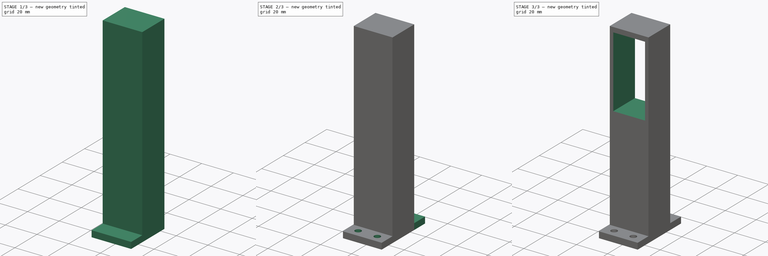
[diagram: build sequence overview — one tinted view per stage of 3, left to right]
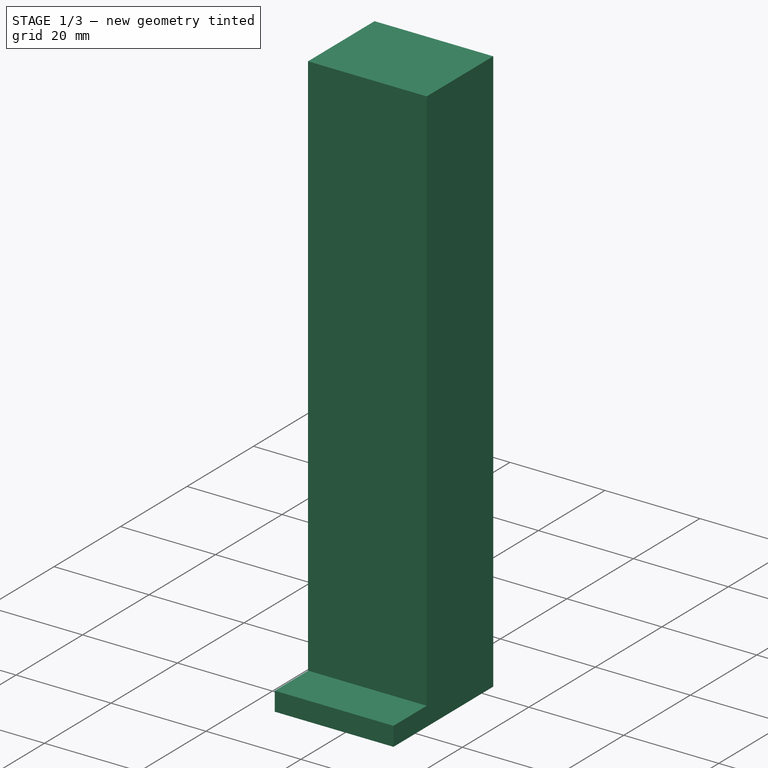
[diagram: stage 1 of 3 — iso view after this stage's code; geometry added in this stage tinted green]
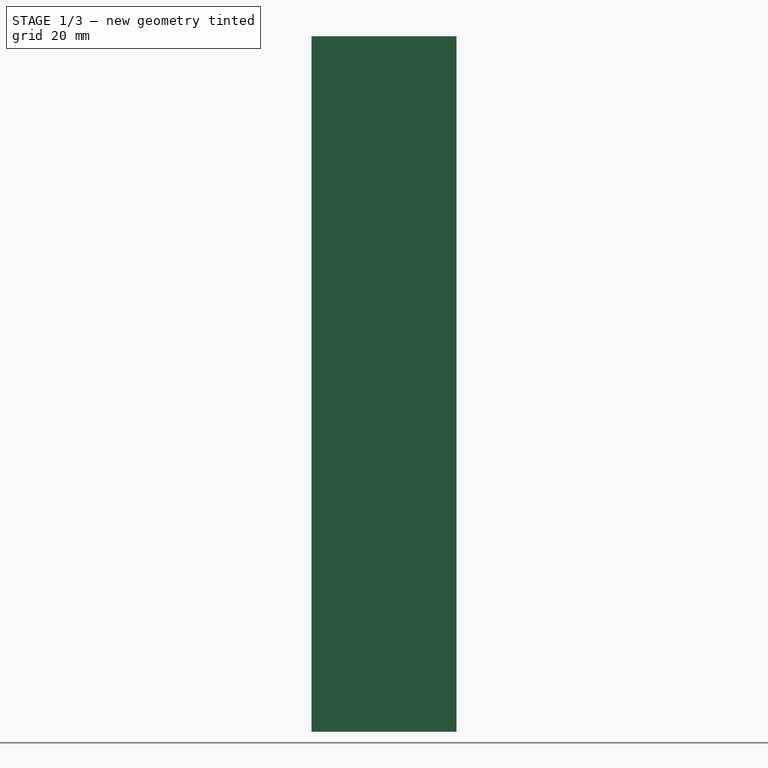
[diagram: stage 1 of 3 — front view after this stage's code; geometry added in this stage tinted green]
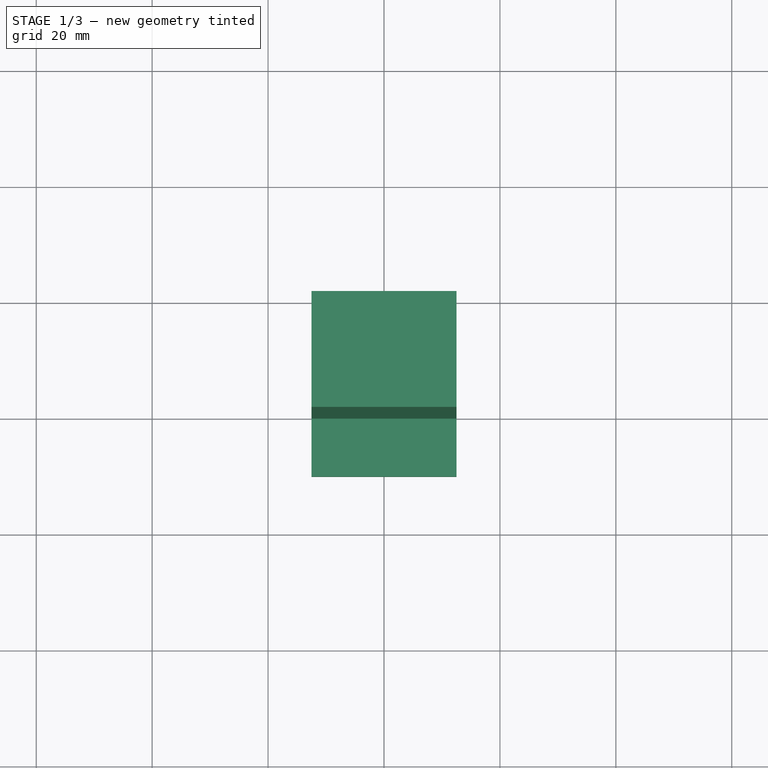
[diagram: stage 1 of 3 — top view after this stage's code; geometry added in this stage tinted green]
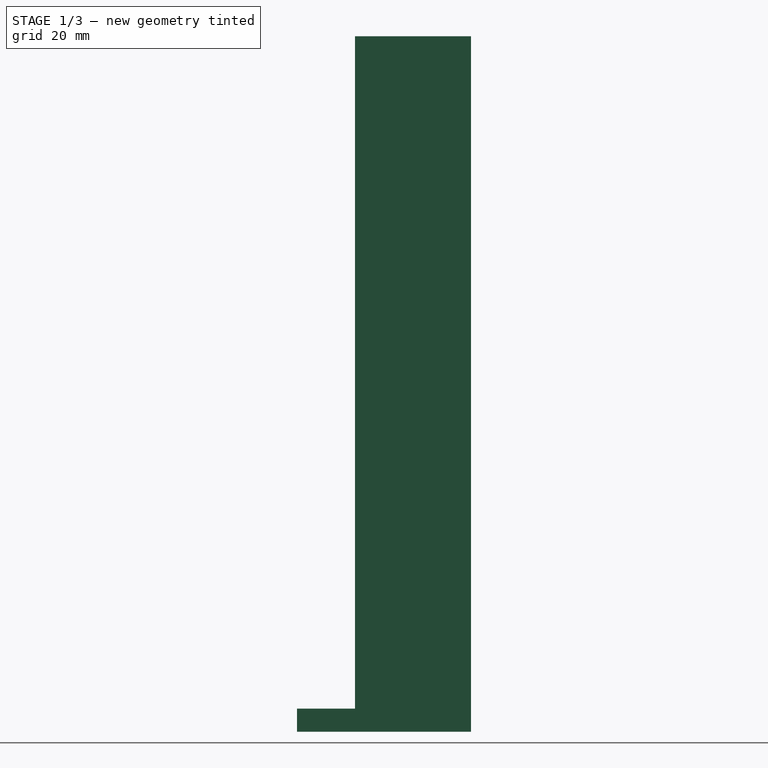
[diagram: stage 1 of 3 — right view after this stage's code; geometry added in this stage tinted green]
FCSTD DOCUMENT  (FreeCAD 0.16R6706 (Git))
Label: Suport_Empenyedora
License: All rights reserved
LicenseURL: http://en.wikipedia.org/wiki/All_rights_reserved
objects: Sketcher::SketchObject×6, PartDesign::Pad×3, PartDesign::Pocket×3
note: 18 computed .brp shape members not serialized (recipe doc carries the construction recipe); baked Part::Feature solids carry a one-line shape summary decoded from their .brp

FEATURE [Sketcher::SketchObject] Sketch
  Placement = pos=(0,0,0) rot=(1,0,0;1.5708rad)
  sketch-geometry (4):
    g0: LineSegment StartX=-12.5 StartY=60 StartZ=0 EndX=12.5 EndY=60 EndZ=0
    g1: LineSegment StartX=12.5 StartY=60 StartZ=0 EndX=12.5 EndY=-60 EndZ=0
    g2: LineSegment StartX=12.5 StartY=-60 StartZ=0 EndX=-12.5 EndY=-60 EndZ=0
    g3: LineSegment StartX=-12.5 StartY=-60 StartZ=0 EndX=-12.5 EndY=60 EndZ=0
  constraints (12):
    c: Coincident(g0,g1)
    c: Coincident(g1,g2)
    c: Coincident(g2,g3)
    c: Coincident(g3,g0)
    c: Horizontal(g0)
    c: Horizontal(g2)
    c: Vertical(g1)
    c: Vertical(g3)
    c: DistanceX(g0,g0) = 25
    c: DistanceY(g3,g3) = 120
    c: Symmetric(g2,g1,g-2)
    c: Symmetric(g0,g2,g-1)
FEATURE [PartDesign::Pad] Pad
  Length = 20
  Length2 = 100
  Placement = pos=(0,0,0) rot=(1,0,0;1.5708rad)
  Sketch = -> Sketch
  Type = 0
FEATURE [Sketcher::SketchObject] Sketch001
  ExternalGeometry = -> [Pad]
  Placement = pos=(0,-20,0) rot=(1,0,0;1.5708rad)
  Support = -> Pad [Face6]
  sketch-geometry (4):
    g0: LineSegment StartX=-12.5 StartY=-60 StartZ=0 EndX=12.5 EndY=-60 EndZ=0
    g1: LineSegment StartX=12.5 StartY=-60 StartZ=0 EndX=12.5 EndY=-56 EndZ=0
    g2: LineSegment StartX=12.5 StartY=-56 StartZ=0 EndX=-12.5 EndY=-56 EndZ=0
    g3: LineSegment StartX=-12.5 StartY=-56 StartZ=0 EndX=-12.5 EndY=-60 EndZ=0
  constraints (11):
    c: Coincident(g0,g1)
    c: Coincident(g1,g2)
    c: Coincident(g2,g3)
    c: Coincident(g3,g0)
    c: Horizontal(g0)
    c: Horizontal(g2)
    c: Vertical(g1)
    c: Vertical(g3)
    c: Coincident(g0,g-4)
    c: PointOnObject(g1,g-5)
    c: DistanceY(g0,g1) = 4
FEATURE [PartDesign::Pad] Pad001
  Length = 10
  Length2 = 100
  Placement = pos=(0,0,0) rot=(1,0,0;1.5708rad)
  Sketch = -> Sketch001
  Type = 0
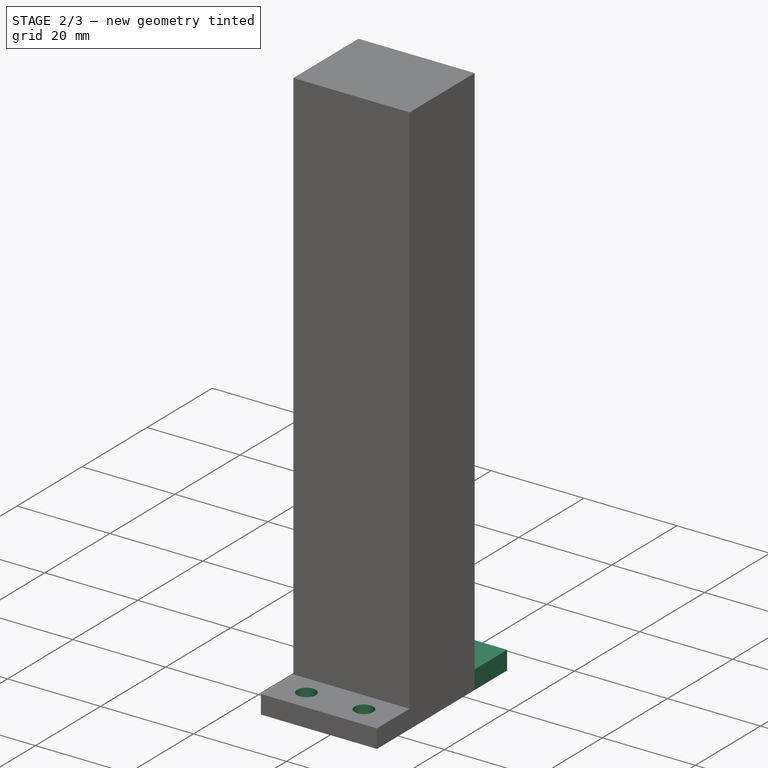
[diagram: stage 2 of 3 — iso view after this stage's code; geometry added in this stage tinted green]
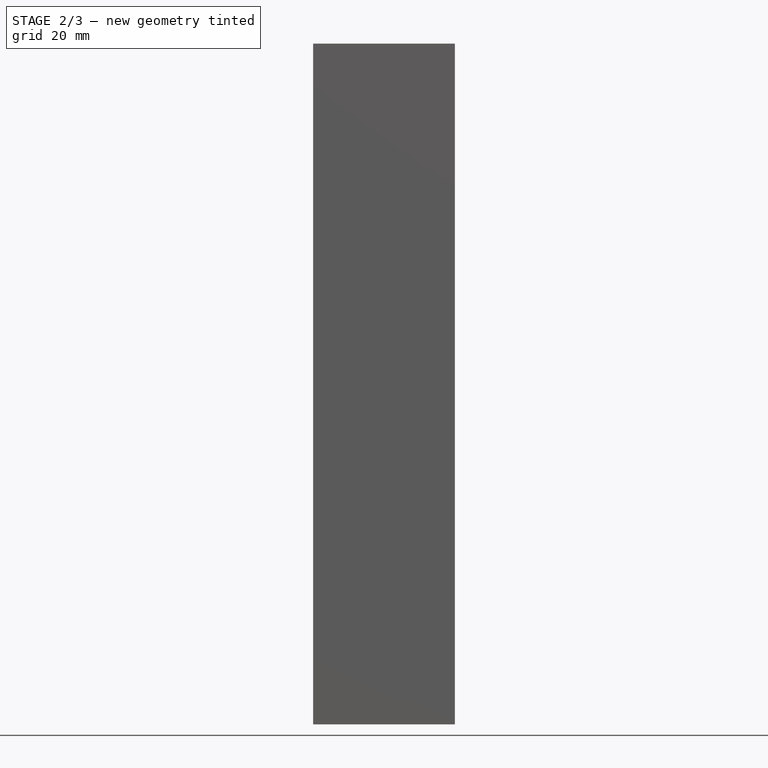
[diagram: stage 2 of 3 — front view after this stage's code; geometry added in this stage tinted green]
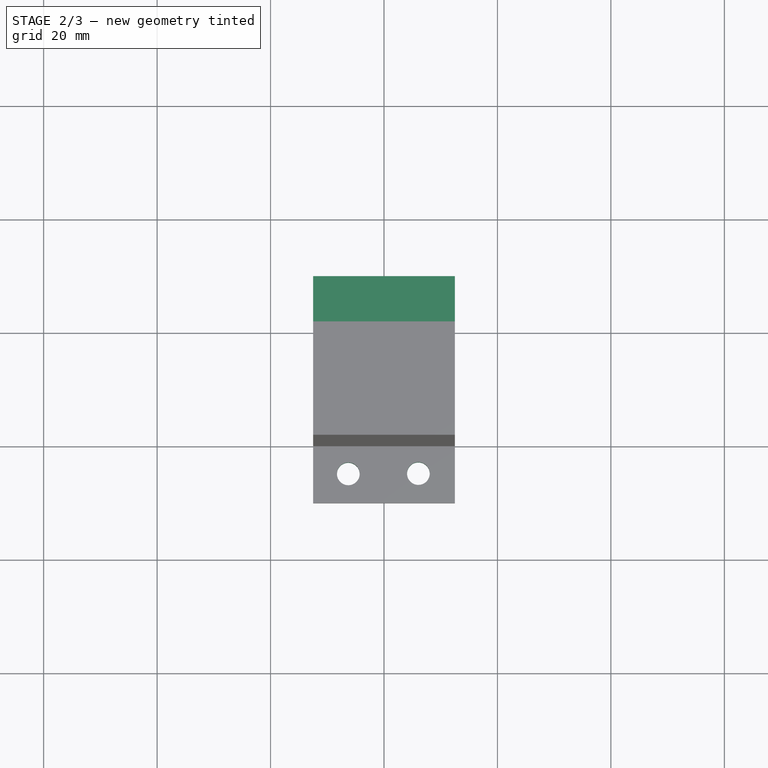
[diagram: stage 2 of 3 — top view after this stage's code; geometry added in this stage tinted green]
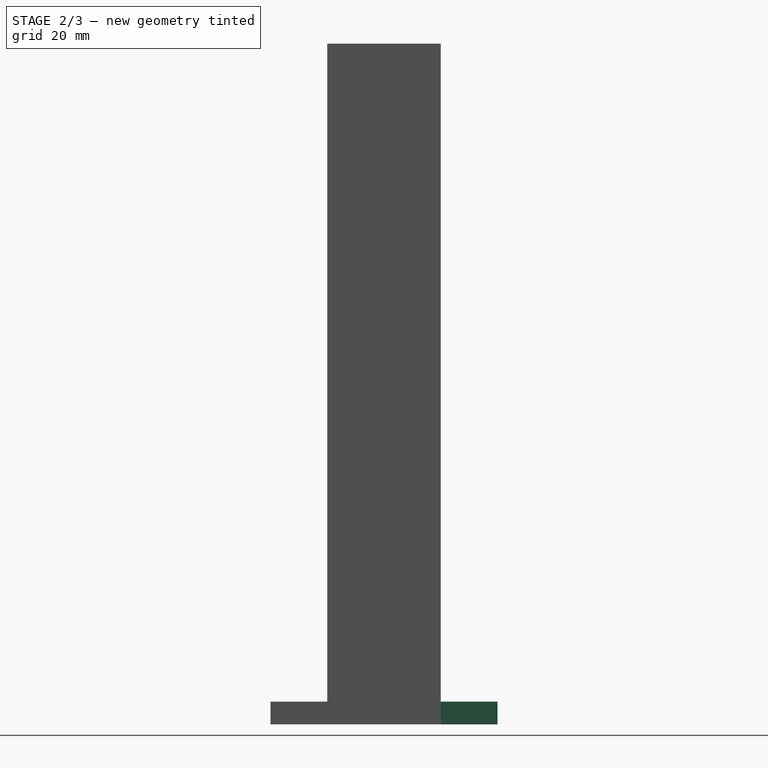
[diagram: stage 2 of 3 — right view after this stage's code; geometry added in this stage tinted green]
FEATURE [Sketcher::SketchObject] Sketch002
  ExternalGeometry = -> [Pad001]
  Placement = pos=(0,0,-60) rot=(1,0,0;3.14159rad)
  Support = -> Pad001 [Face10]
  sketch-geometry (2):
    g0: Circle CenterX=-6.29053 CenterY=24.8642 CenterZ=0 NormalX=0 NormalY=0 NormalZ=1 Radius=2
    g1: Circle CenterX=6.06104 CenterY=24.8049 CenterZ=0 NormalX=0 NormalY=0 NormalZ=1 Radius=2
FEATURE [PartDesign::Pocket] Pocket
  Length = 4
  Placement = pos=(0,0,0) rot=(1,0,0;1.5708rad)
  Sketch = -> Sketch002
  Type = 0
FEATURE [Sketcher::SketchObject] Sketch003
  ExternalGeometry = -> [Pocket]
  Placement = pos=(0,0,0) rot=(-1,0,0;1.5708rad)
  Support = -> Pocket [Face4]
  sketch-geometry (4):
    g0: LineSegment StartX=-12.5 StartY=60 StartZ=0 EndX=12.5 EndY=60 EndZ=0
    g1: LineSegment StartX=12.5 StartY=60 StartZ=0 EndX=12.5 EndY=56 EndZ=0
    g2: LineSegment StartX=12.5 StartY=56 StartZ=0 EndX=-12.5 EndY=56 EndZ=0
    g3: LineSegment StartX=-12.5 StartY=56 StartZ=0 EndX=-12.5 EndY=60 EndZ=0
  constraints (11):
    c: Coincident(g0,g1)
    c: Coincident(g1,g2)
    c: Coincident(g2,g3)
    c: Coincident(g3,g0)
    c: Horizontal(g0)
    c: Horizontal(g2)
    c: Vertical(g1)
    c: Vertical(g3)
    c: Coincident(g0,g-3)
    c: PointOnObject(g1,g-4)
    c: DistanceY(g2,g0) = 4
FEATURE [PartDesign::Pad] Pad002
  Length = 10
  Length2 = 100
  Placement = pos=(0,0,0) rot=(1,0,0;1.5708rad)
  Sketch = -> Sketch003
  Type = 0
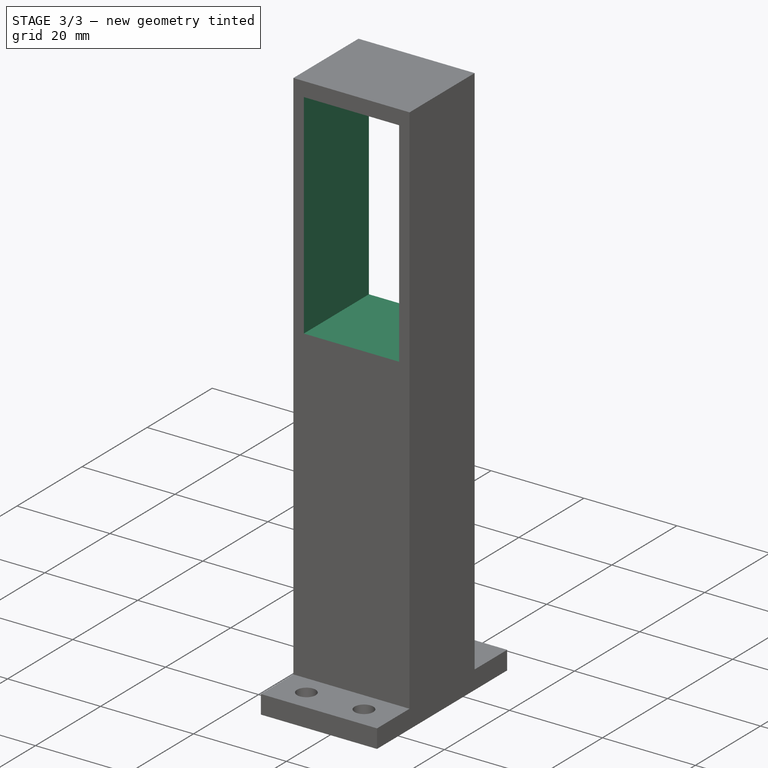
[diagram: stage 3 of 3 — iso view after this stage's code; geometry added in this stage tinted green]
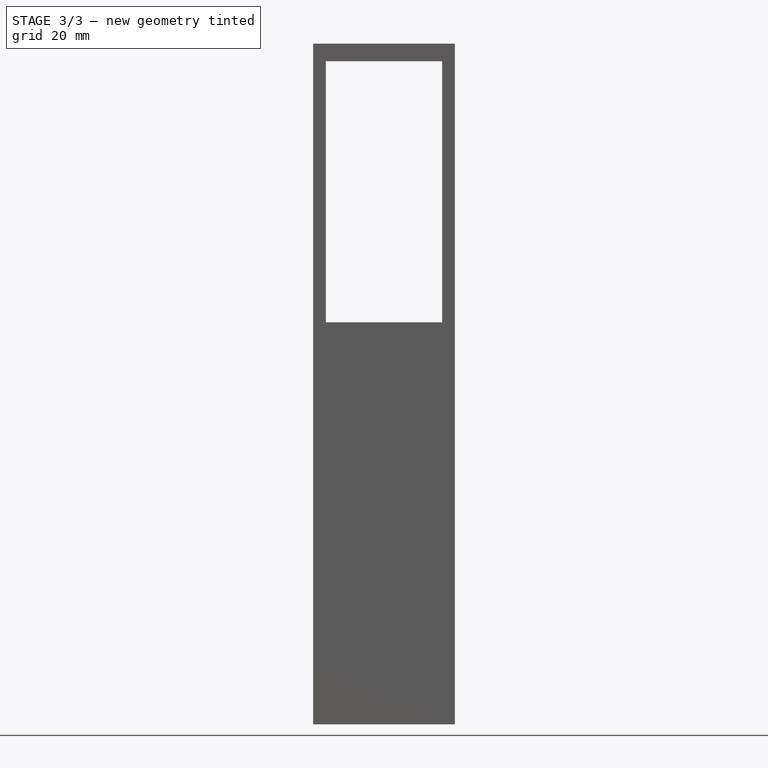
[diagram: stage 3 of 3 — front view after this stage's code; geometry added in this stage tinted green]
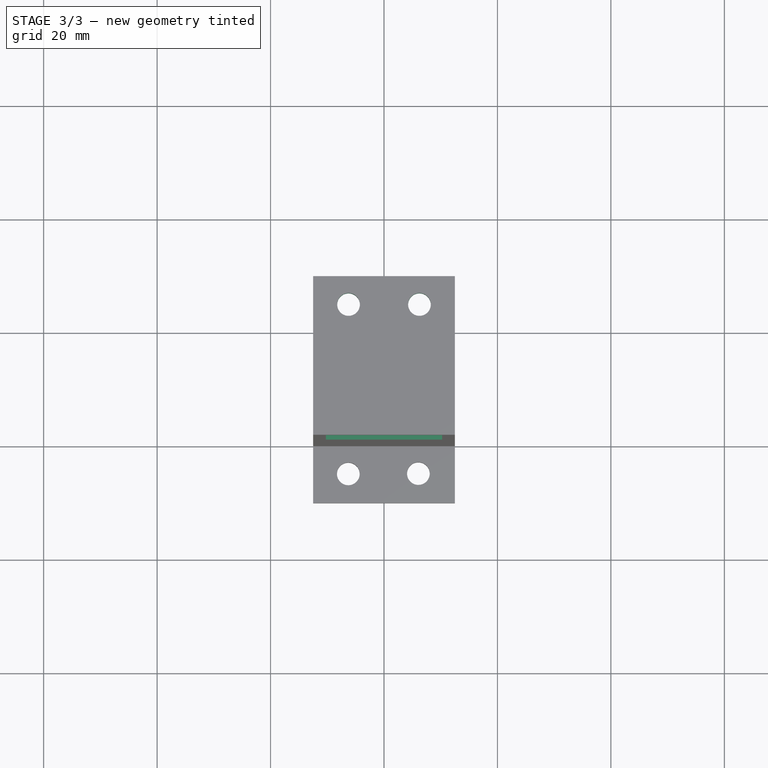
[diagram: stage 3 of 3 — top view after this stage's code; geometry added in this stage tinted green]
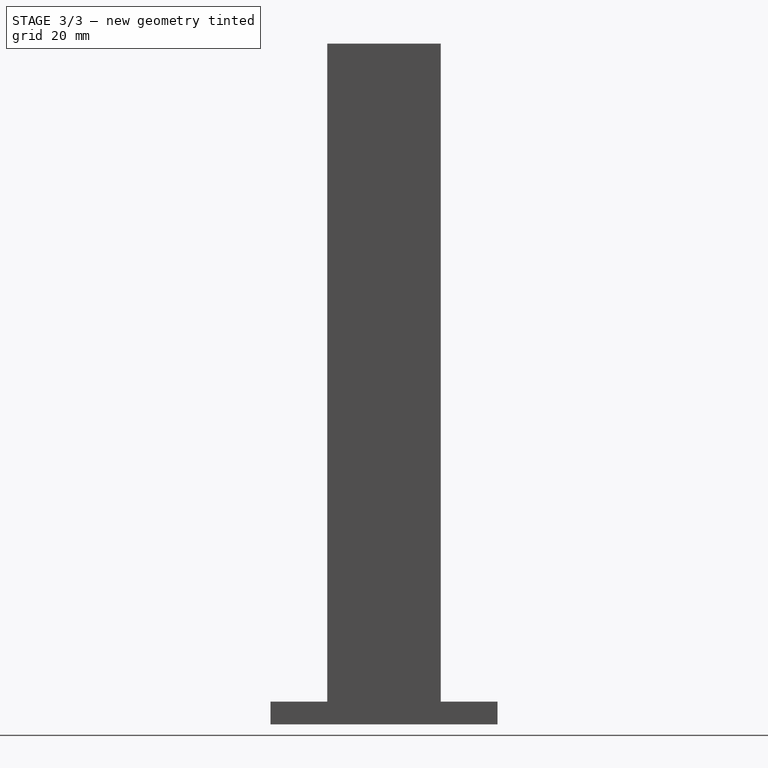
[diagram: stage 3 of 3 — right view after this stage's code; geometry added in this stage tinted green]
FEATURE [Sketcher::SketchObject] Sketch004
  ExternalGeometry = -> [Pad002]
  Placement = pos=(0,0,-60) rot=(1,0,0;3.14159rad)
  Support = -> Pad002 [Face13]
  sketch-geometry (2):
    g0: Circle CenterX=-6.25 CenterY=-5 CenterZ=0 NormalX=0 NormalY=0 NormalZ=1 Radius=2
    g1: Circle CenterX=6.25 CenterY=-5 CenterZ=0 NormalX=0 NormalY=0 NormalZ=1 Radius=2
FEATURE [PartDesign::Pocket] Pocket001
  Length = 4
  Placement = pos=(0,0,0) rot=(1,0,0;1.5708rad)
  Sketch = -> Sketch004
  Type = 0
FEATURE [Sketcher::SketchObject] Sketch005
  Placement = pos=(0,-20,0) rot=(1,0,0;1.5708rad)
  Support = -> Pocket001 [Face5]
  sketch-geometry (4):
    g0: LineSegment StartX=-10.25 StartY=56.8917 StartZ=0 EndX=10.25 EndY=56.8917 EndZ=0
    g1: LineSegment StartX=10.25 StartY=56.8917 StartZ=0 EndX=10.25 EndY=10.8917 EndZ=0
    g2: LineSegment StartX=10.25 StartY=10.8917 StartZ=0 EndX=-10.25 EndY=10.8917 EndZ=0
    g3: LineSegment StartX=-10.25 StartY=10.8917 StartZ=0 EndX=-10.25 EndY=56.8917 EndZ=0
  constraints (11):
    c: Coincident(g0,g1)
    c: Coincident(g1,g2)
    c: Coincident(g2,g3)
    c: Coincident(g3,g0)
    c: Horizontal(g0)
    c: Horizontal(g2)
    c: Vertical(g1)
    c: Vertical(g3)
    c: DistanceX(g2,g2) = 20.5
    c: DistanceY(g1,g1) = 46
    c: Symmetric(g2,g1,g-2)
FEATURE [PartDesign::Pocket] Pocket002
  Length = 20
  Placement = pos=(0,0,0) rot=(1,0,0;1.5708rad)
  Sketch = -> Sketch005
  Type = 0
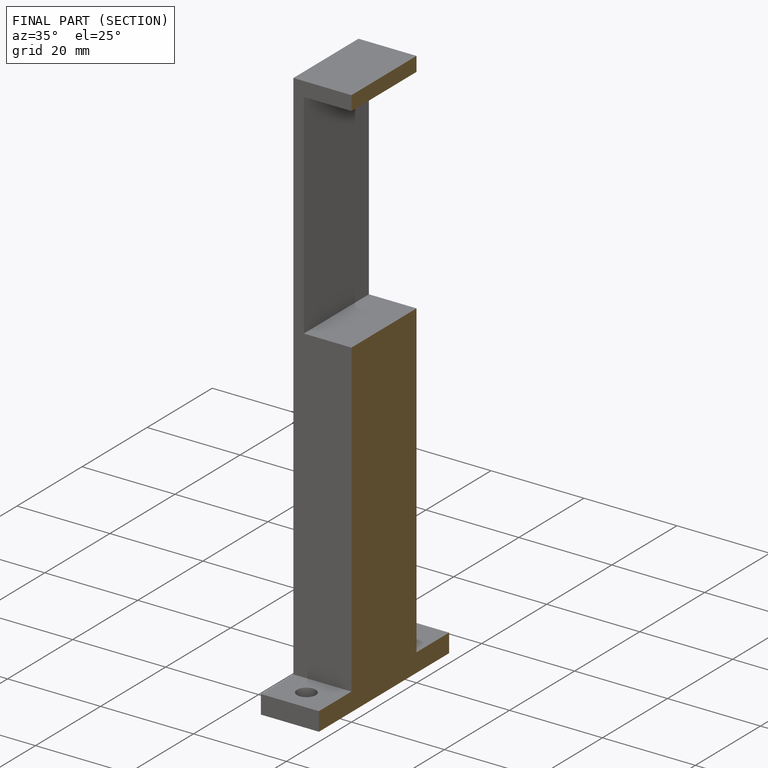
[diagram: finished part — half-section view (interior)]
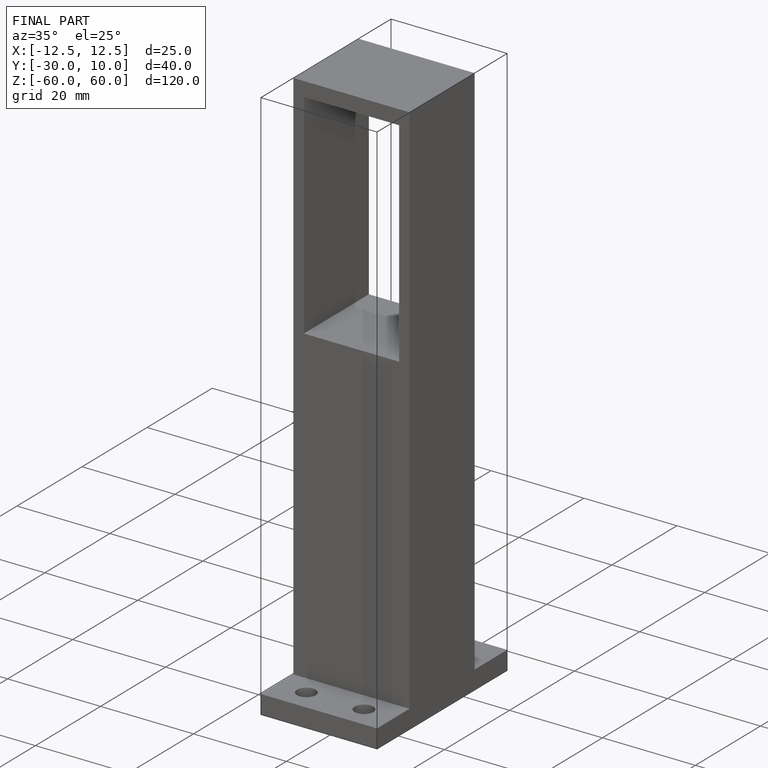
[diagram: finished part — iso view with bounding-box wireframe]
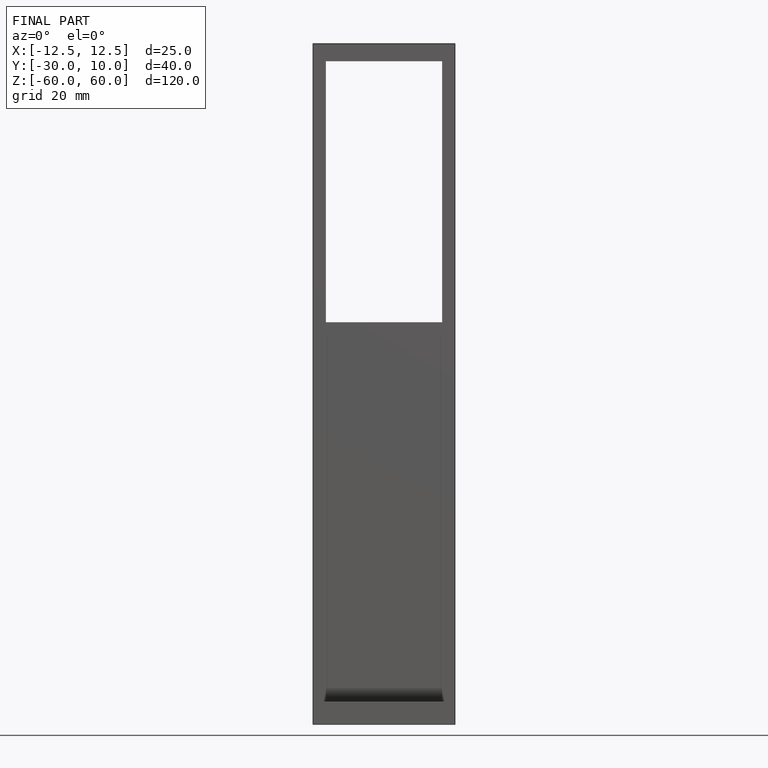
[diagram: finished part — front view with bounding-box wireframe]
